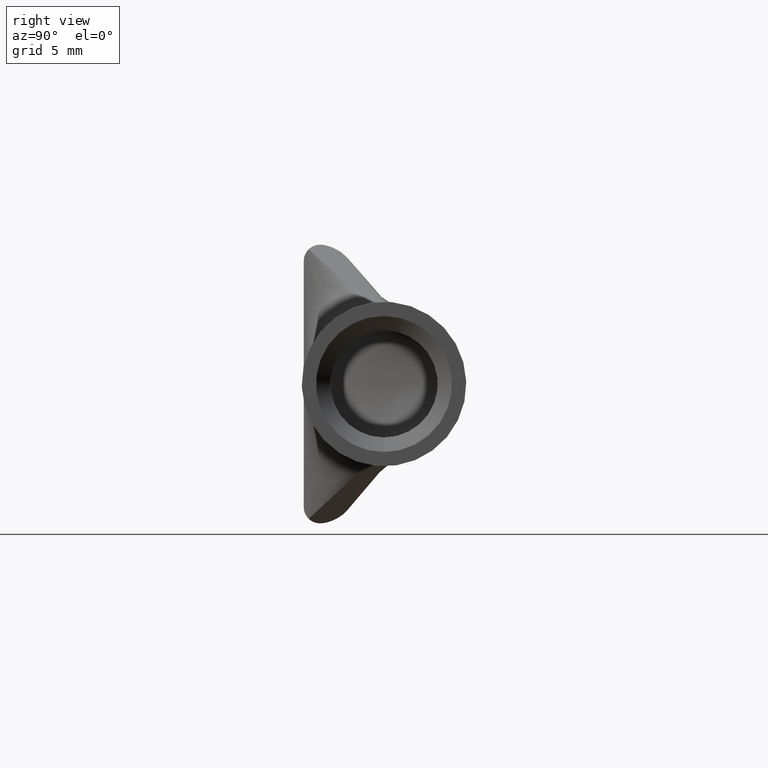
[diagram: clean part render]
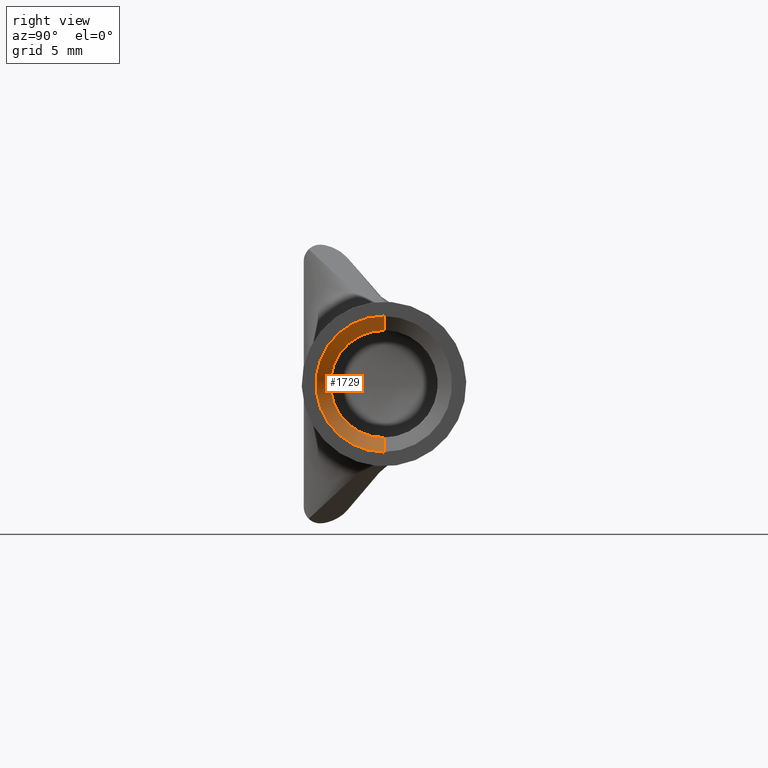
[diagram: same view with one face highlighted and labeled with its STEP entity id]
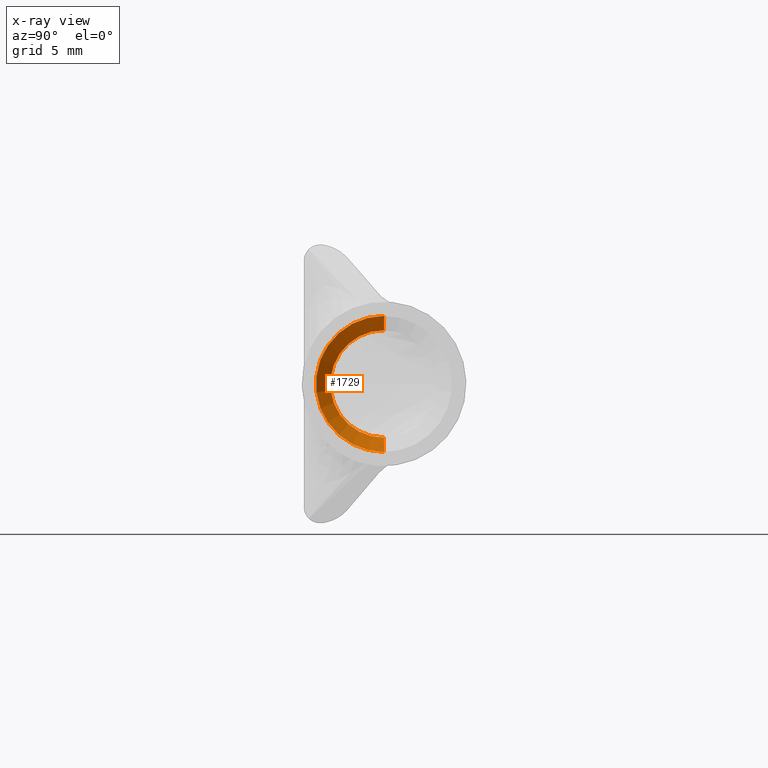
[diagram: x-ray of the same camera — body ghosted, the highlighted face saturated]
A machine part, right view. The second image highlights one B-rep face of the part: STEP entity #1729.
The next image is the same camera in x-ray: the body ghosted, the highlighted face saturated — about 0% of this face is hidden behind the body in this view.
In plain terms, the highlighted conical surface has half-angle 55 deg.
Its self-contained STEP definition (entity closure, byte-faithful):
#43 = DIRECTION ( 'NONE',  ( 1.000000000000000000, 0.000000000000000000, 0.000000000000000000 ) ) ;
#336 = LINE ( 'NONE', #2588, #3689 ) ;
#428 = CARTESIAN_POINT ( 'NONE',  ( 1.015748035433071239, 0.1377522466780526089, 0.1154999999999999916 ) ) ;
#640 = CARTESIAN_POINT ( 'NONE',  ( 1.015748035433071239, 0.1377522466780526089, 0.000000000000000000 ) ) ;
#657 = VERTEX_POINT ( 'NONE', #2794 ) ;
#778 = CARTESIAN_POINT ( 'NONE',  ( 1.015748035433071239, 0.1377522466780526089, -0.1154999999999999916 ) ) ;
#986 = CARTESIAN_POINT ( 'NONE',  ( 1.037401578740157593, 0.1377522466780526089, -0.1464244647129192556 ) ) ;
#1002 = ORIENTED_EDGE ( 'NONE', *, *, #1128, .F. ) ;
#1054 = CARTESIAN_POINT ( 'NONE',  ( 1.037401578740157593, 0.1377522466780526089, 0.000000000000000000 ) ) ;
#1128 = EDGE_CURVE ( 'NONE', #1286, #3826, #1353, .T. ) ;
#1169 = EDGE_CURVE ( 'NONE', #2070, #657, #1965, .T. ) ;
#1286 = VERTEX_POINT ( 'NONE', #428 ) ;
#1290 = DIRECTION ( 'NONE',  ( 0.000000000000000000, 0.000000000000000000, -1.000000000000000000 ) ) ;
#1332 = FACE_OUTER_BOUND ( 'NONE', #1382, .T. ) ;
#1353 = CIRCLE ( 'NONE', #2907, 0.1154999999999999916 ) ;
#1382 = EDGE_LOOP ( 'NONE', ( #1002, #2813, #2174, #2403 ) ) ;
#1729 = ADVANCED_FACE ( 'NONE', ( #1332 ), #3126, .F. ) ;
#1852 = CARTESIAN_POINT ( 'NONE',  ( 1.015748035433071239, 0.1377522466780526089, -0.1154999999999999916 ) ) ;
#1965 = CIRCLE ( 'NONE', #3804, 0.1464244647129192556 ) ;
#2070 = VERTEX_POINT ( 'NONE', #986 ) ;
#2174 = ORIENTED_EDGE ( 'NONE', *, *, #1169, .F. ) ;
#2403 = ORIENTED_EDGE ( 'NONE', *, *, #2501, .F. ) ;
#2501 = EDGE_CURVE ( 'NONE', #3826, #2070, #4050, .T. ) ;
#2588 = CARTESIAN_POINT ( 'NONE',  ( 1.015748035433071239, 0.1377522466780526089, 0.1154999999999999916 ) ) ;
#2613 = DIRECTION ( 'NONE',  ( -1.000000000000000000, -0.000000000000000000, -0.000000000000000000 ) ) ;
#2669 = DIRECTION ( 'NONE',  ( 0.000000000000000000, 0.000000000000000000, -1.000000000000000000 ) ) ;
#2677 = DIRECTION ( 'NONE',  ( 0.000000000000000000, 0.000000000000000000, -1.000000000000000000 ) ) ;
#2692 = DIRECTION ( 'NONE',  ( 0.5735764363510493791, 0.000000000000000000, -0.8191520442889895781 ) ) ;
#2794 = CARTESIAN_POINT ( 'NONE',  ( 1.037401578740157593, 0.1377522466780526089, 0.1464244647129192556 ) ) ;
#2813 = ORIENTED_EDGE ( 'NONE', *, *, #4126, .T. ) ;
#2901 = DIRECTION ( 'NONE',  ( 1.000000000000000000, 0.000000000000000000, 0.000000000000000000 ) ) ;
#2907 = AXIS2_PLACEMENT_3D ( 'NONE', #3311, #43, #2669 ) ;
#3126 = CONICAL_SURFACE ( 'NONE', #3877, 0.1154999999999999916, 0.9599310885968772578 ) ;
#3311 = CARTESIAN_POINT ( 'NONE',  ( 1.015748035433071239, 0.1377522466780526089, 0.000000000000000000 ) ) ;
#3640 = DIRECTION ( 'NONE',  ( 0.5735764363510493791, 1.003171929053522158E-16, 0.8191520442889895781 ) ) ;
#3689 = VECTOR ( 'NONE', #3640, 39.37007874015748143 ) ;
#3804 = AXIS2_PLACEMENT_3D ( 'NONE', #1054, #2613, #2677 ) ;
#3826 = VERTEX_POINT ( 'NONE', #1852 ) ;
#3877 = AXIS2_PLACEMENT_3D ( 'NONE', #640, #2901, #1290 ) ;
#3948 = VECTOR ( 'NONE', #2692, 39.37007874015748143 ) ;
#4050 = LINE ( 'NONE', #778, #3948 ) ;
#4126 = EDGE_CURVE ( 'NONE', #1286, #657, #336, .T. ) ;